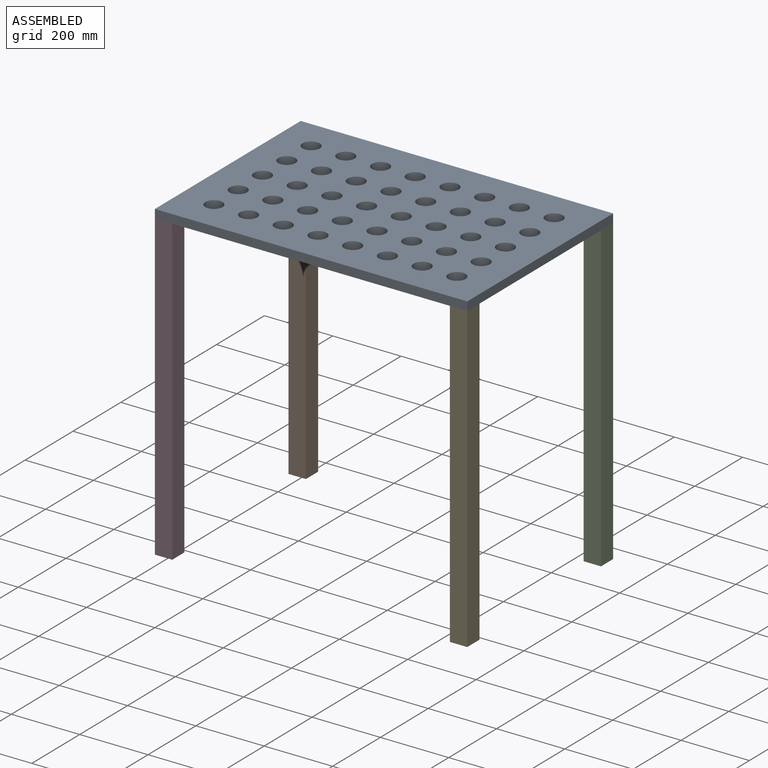
[diagram: assembled view]
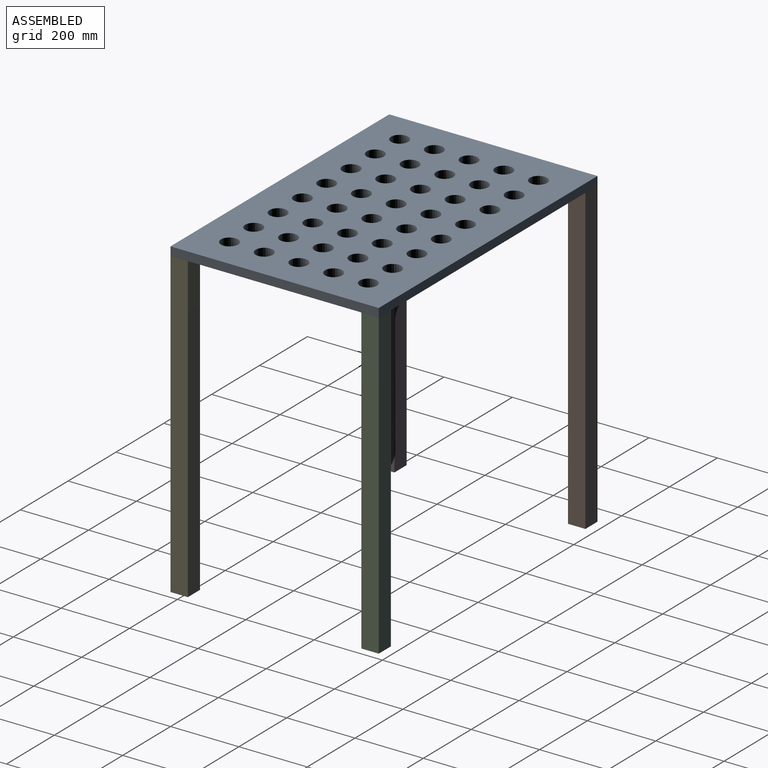
[diagram: assembled view, second angle]
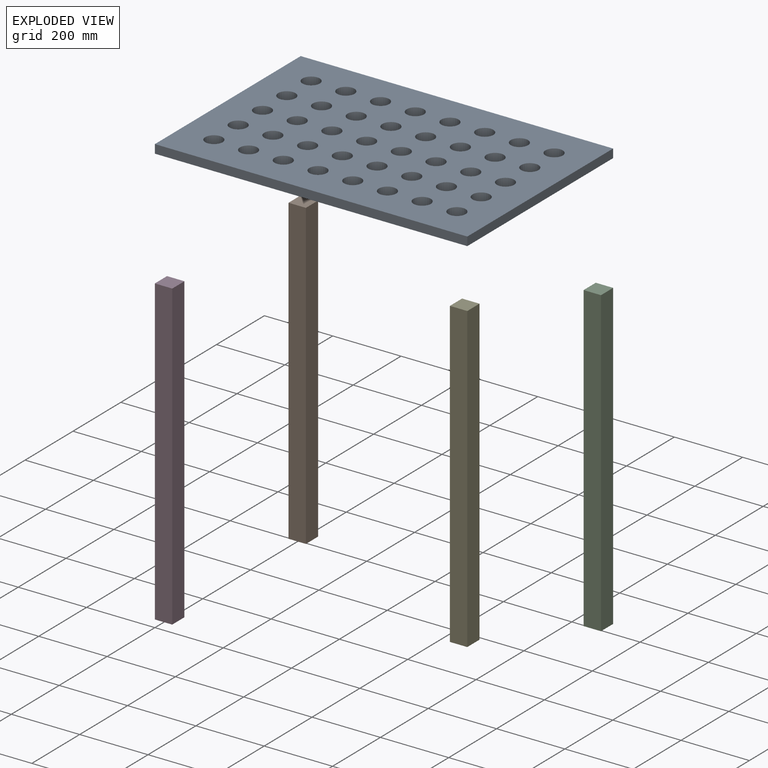
[diagram: exploded view]
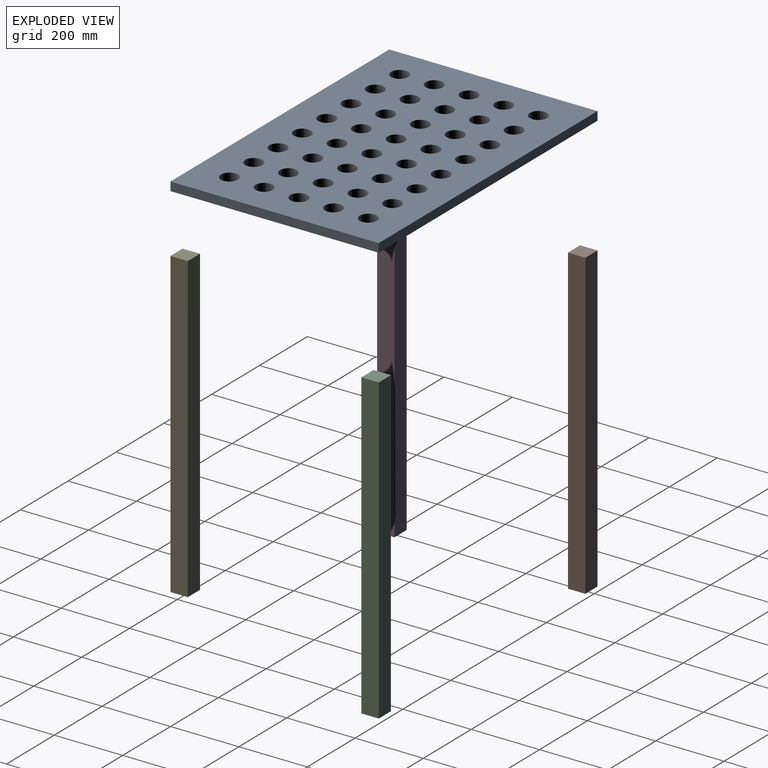
[diagram: exploded view, second angle]
ASSEMBLY  parts=5 mates=4
PART A: 46 faces, bbox 914.4x609.6x25.4 mm
  f0: plane 914.4x25.4mm, normal (0,-1,0), area 23225.8mm2, adj f1,f3,f4,f5
  f1: plane 609.6x25.4mm, normal (1,0,0), area 15483.8mm2, adj f0,f2,f4,f5
  f2: plane 914.4x25.4mm, normal (0,1,0), area 23225.8mm2, adj f1,f3,f4,f5
  f3: plane 609.6x25.4mm, normal (-1,0,0), area 15483.8mm2, adj f0,f2,f4,f5
  f4: plane 914.4x609.6mm, normal (0,0,1), area 476345mm2, adj f0,f1,f2,f3,f6,f7,f8,f9
  f5: plane 914.4x609.6mm, normal (0,0,-1), area 476345mm2, adj f0,f1,f2,f3,f6,f7,f8,f9
  f6: cylinder r=25.4mm len=50.8mm, axis (0,0,1), area 4053.7mm2, adj f4,f5
  f7: cylinder r=25.4mm len=50.8mm, axis (0,0,1), area 4053.7mm2, adj f4,f5
  f8: cylinder r=25.4mm len=50.8mm, axis (0,0,1), area 4053.7mm2, adj f4,f5
  f9: cylinder r=25.4mm len=50.8mm, axis (0,0,1), area 4053.7mm2, adj f4,f5
  f10: cylinder r=25.4mm len=50.8mm, axis (0,0,1), area 4053.7mm2, adj f4,f5
  f11: cylinder r=25.4mm len=50.8mm, axis (0,0,1), area 4053.7mm2, adj f4,f5
  f12: cylinder r=25.4mm len=50.8mm, axis (0,0,1), area 4053.7mm2, adj f4,f5
  f13: cylinder r=25.4mm len=50.8mm, axis (0,0,1), area 4053.7mm2, adj f4,f5
  f14: cylinder r=25.4mm len=50.8mm, axis (0,0,1), area 4053.7mm2, adj f4,f5
  f15: cylinder r=25.4mm len=50.8mm, axis (0,0,1), area 4053.7mm2, adj f4,f5
  f16: cylinder r=25.4mm len=50.8mm, axis (0,0,1), area 4053.7mm2, adj f4,f5
  f17: cylinder r=25.4mm len=50.8mm, axis (0,0,1), area 4053.7mm2, adj f4,f5
  f18: cylinder r=25.4mm len=50.8mm, axis (0,0,1), area 4053.7mm2, adj f4,f5
  f19: cylinder r=25.4mm len=50.8mm, axis (0,0,1), area 4053.7mm2, adj f4,f5
  f20: cylinder r=25.4mm len=50.8mm, axis (0,0,1), area 4053.7mm2, adj f4,f5
  f21: cylinder r=25.4mm len=50.8mm, axis (0,0,1), area 4053.7mm2, adj f4,f5
  f22: cylinder r=25.4mm len=50.8mm, axis (0,0,1), area 4053.7mm2, adj f4,f5
  f23: cylinder r=25.4mm len=50.8mm, axis (0,0,1), area 4053.7mm2, adj f4,f5
  f24: cylinder r=25.4mm len=50.8mm, axis (0,0,1), area 4053.7mm2, adj f4,f5
  f25: cylinder r=25.4mm len=50.8mm, axis (0,0,1), area 4053.7mm2, adj f4,f5
  f26: cylinder r=25.4mm len=50.8mm, axis (0,0,1), area 4053.7mm2, adj f4,f5
  f27: cylinder r=25.4mm len=50.8mm, axis (0,0,1), area 4053.7mm2, adj f4,f5
  f28: cylinder r=25.4mm len=50.8mm, axis (0,0,1), area 4053.7mm2, adj f4,f5
  f29: cylinder r=25.4mm len=50.8mm, axis (0,0,1), area 4053.7mm2, adj f4,f5
  f30: cylinder r=25.4mm len=50.8mm, axis (0,0,1), area 4053.7mm2, adj f4,f5
  f31: cylinder r=25.4mm len=50.8mm, axis (0,0,1), area 4053.7mm2, adj f4,f5
  f32: cylinder r=25.4mm len=50.8mm, axis (0,0,1), area 4053.7mm2, adj f4,f5
  f33: cylinder r=25.4mm len=50.8mm, axis (0,0,1), area 4053.7mm2, adj f4,f5
  f34: cylinder r=25.4mm len=50.8mm, axis (0,0,1), area 4053.7mm2, adj f4,f5
  f35: cylinder r=25.4mm len=50.8mm, axis (0,0,1), area 4053.7mm2, adj f4,f5
  f36: cylinder r=25.4mm len=50.8mm, axis (0,0,1), area 4053.7mm2, adj f4,f5
  f37: cylinder r=25.4mm len=50.8mm, axis (0,0,1), area 4053.7mm2, adj f4,f5
  f38: cylinder r=25.4mm len=50.8mm, axis (0,0,1), area 4053.7mm2, adj f4,f5
  f39: cylinder r=25.4mm len=50.8mm, axis (0,0,1), area 4053.7mm2, adj f4,f5
  f40: cylinder r=25.4mm len=50.8mm, axis (0,0,1), area 4053.7mm2, adj f4,f5
  f41: cylinder r=25.4mm len=50.8mm, axis (0,0,1), area 4053.7mm2, adj f4,f5
  f42: cylinder r=25.4mm len=50.8mm, axis (0,0,1), area 4053.7mm2, adj f4,f5
  f43: cylinder r=25.4mm len=50.8mm, axis (0,0,1), area 4053.7mm2, adj f4,f5
  f44: cylinder r=25.4mm len=50.8mm, axis (0,0,1), area 4053.7mm2, adj f4,f5
  f45: cylinder r=25.4mm len=50.8mm, axis (0,0,1), area 4053.7mm2, adj f4,f5
PART B: 6 faces, bbox 50.8x50.8x889 mm
  f0: plane 889x50.8mm, normal (0,-1,0), area 45161.2mm2, adj f1,f3,f4,f5
  f1: plane 889x50.8mm, normal (1,0,0), area 45161.2mm2, adj f0,f2,f4,f5
  f2: plane 889x50.8mm, normal (0,1,0), area 45161.2mm2, adj f1,f3,f4,f5
  f3: plane 889x50.8mm, normal (-1,0,0), area 45161.2mm2, adj f0,f2,f4,f5
  f4: plane 50.8x50.8mm, normal (0,0,1), area 2580.6mm2, adj f0,f1,f2,f3
  f5: plane 50.8x50.8mm, normal (0,0,-1), area 2580.6mm2, adj f0,f1,f2,f3
PART C: same geometry as B
PART D: same geometry as B
PART E: same geometry as B
PLACE A t=(457.2,304.8,889)mm
PLACE B t=(25.4,584.2,0)mm
PLACE C t=(889,584.2,0)mm
PLACE D t=(25.4,25.4,0)mm
PLACE E t=(889,25.4,0)mm
MATE fastened D.f4 <-> A.f5  axis (0,0,1) through (0,0,889)mm
MATE fastened E.f4 <-> A.f5  axis (0,0,1) through (914.4,0,889)mm
MATE fastened C.f4 <-> A.f5  axis (0,0,1) through (914.4,609.6,889)mm
MATE fastened B.f4 <-> A.f5  axis (0,0,1) through (0,609.6,889)mm
